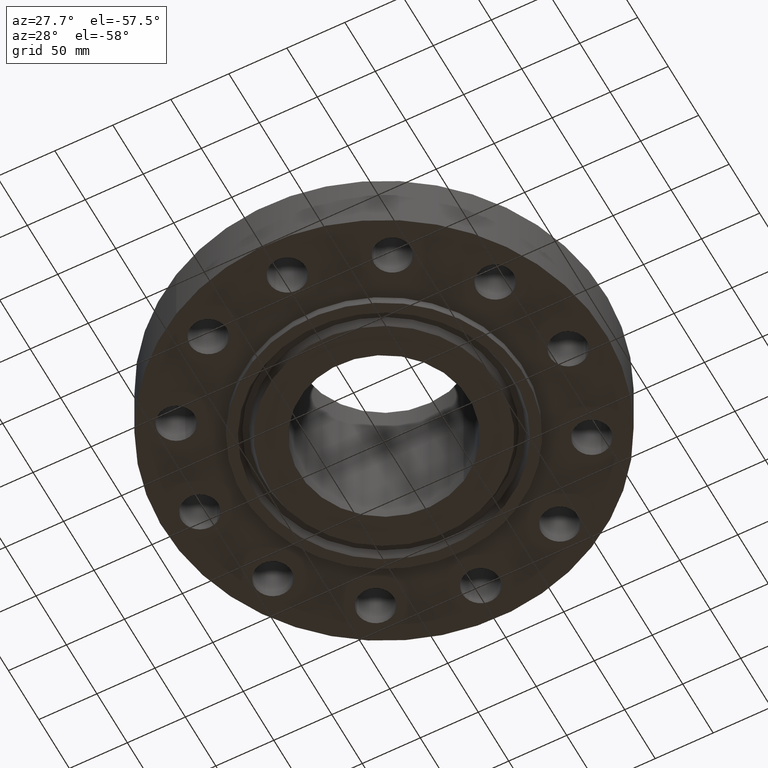
[diagram: clean part render]
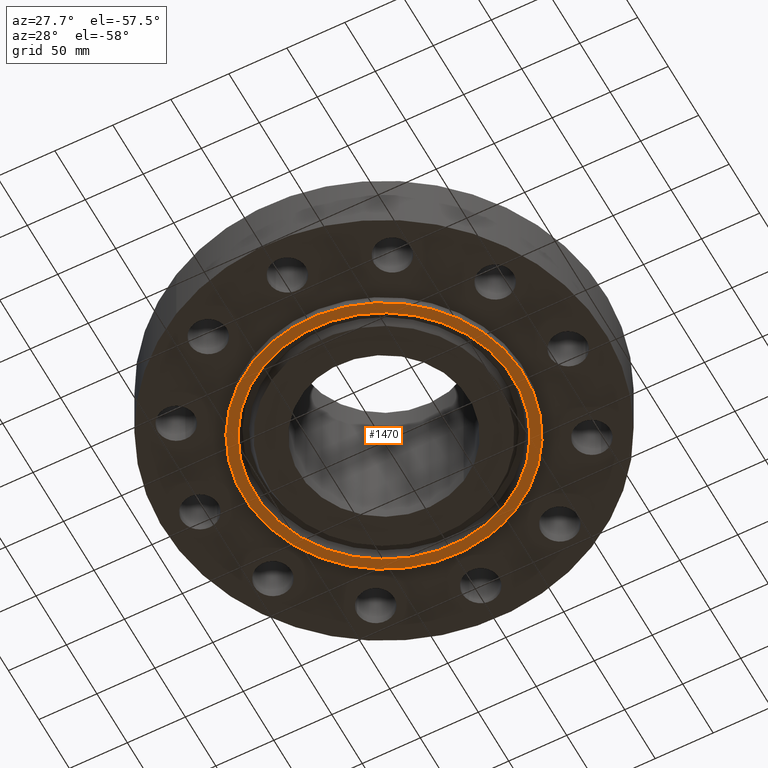
[diagram: same view with one face highlighted and labeled with its STEP entity id]
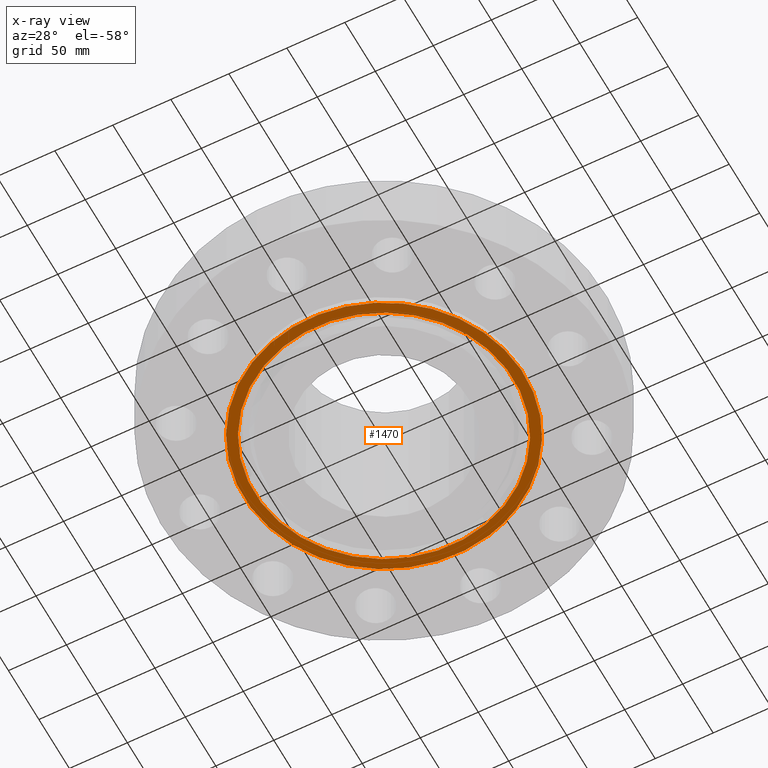
[diagram: x-ray of the same camera — body ghosted, the highlighted face saturated]
A machine part, auxiliary view. The second image highlights one B-rep face of the part: STEP entity #1470.
The next image is the same camera in x-ray: the body ghosted, the highlighted face saturated — about 0% of this face is hidden behind the body in this view.
In plain terms, the highlighted planar face has unit normal (0, 0, -1).
Its self-contained STEP definition (entity closure, byte-faithful):
#711=AXIS2_PLACEMENT_3D('Circle Axis2P3D',#709,#710,$) ;
#1446=AXIS2_PLACEMENT_3D('Plane Axis2P3D',#1443,#1444,#1445) ;
#1454=AXIS2_PLACEMENT_3D('Circle Axis2P3D',#1452,#1453,$) ;
#1463=AXIS2_PLACEMENT_3D('Circle Axis2P3D',#1461,#1462,$) ;
#709=CARTESIAN_POINT('Axis2P3D Location',(0.,0.,-0.312499999975)) ;
#713=CARTESIAN_POINT('Vertex',(2.27727130838,4.168517169,-0.312499999975)) ;
#715=CARTESIAN_POINT('Vertex',(-2.2772713084,-4.16851716898,-0.312500000001)) ;
#748=CARTESIAN_POINT('Control Point',(-2.27727130838,-4.168517169,-0.312500000001)) ;
#749=CARTESIAN_POINT('Control Point',(-2.93206045411,-3.81080422836,-0.3125)) ;
#750=CARTESIAN_POINT('Control Point',(-3.51661282818,-3.32452373962,-0.312499999998)) ;
#751=CARTESIAN_POINT('Control Point',(-3.99715566151,-2.7279608678,-0.312499999997)) ;
#752=CARTESIAN_POINT('Control Point',(-4.69843662508,-1.37855886052,-0.312499999995)) ;
#753=CARTESIAN_POINT('Control Point',(-4.83741405811,0.135827497115,-0.312499999992)) ;
#754=CARTESIAN_POINT('Control Point',(-4.75537550214,0.897456245283,-0.312499999991)) ;
#755=CARTESIAN_POINT('Control Point',(-4.29708471711,2.34750808003,-0.312499999988)) ;
#756=CARTESIAN_POINT('Control Point',(-3.32452373962,3.51661282818,-0.312499999986)) ;
#757=CARTESIAN_POINT('Control Point',(-2.7279608678,3.99715566151,-0.312499999984)) ;
#758=CARTESIAN_POINT('Control Point',(-1.37855886053,4.69843662508,-0.312499999982)) ;
#759=CARTESIAN_POINT('Control Point',(0.135827497113,4.83741405811,-0.312499999979)) ;
#760=CARTESIAN_POINT('Control Point',(0.897456245281,4.75537550214,-0.312499999978)) ;
#761=CARTESIAN_POINT('Control Point',(1.62248216265,4.52623010963,-0.312499999977)) ;
#762=CARTESIAN_POINT('Control Point',(2.27727130838,4.168517169,-0.312499999975)) ;
#1443=CARTESIAN_POINT('Axis2P3D Location',(0.,2.88050000001,-0.312500000001)) ;
#1452=CARTESIAN_POINT('Axis2P3D Location',(0.,2.51364283718E-011,-0.312500000001)) ;
#1456=CARTESIAN_POINT('Vertex',(2.10498974109,-3.85315787536,-0.312500000001)) ;
#1458=CARTESIAN_POINT('Vertex',(-2.10498974109,3.85315787541,-0.312500000001)) ;
#1461=CARTESIAN_POINT('Axis2P3D Location',(0.,2.51364283718E-011,-0.312500000001)) ;
#710=DIRECTION('Axis2P3D Direction',(0.,0.,-0.0393700787402)) ;
#1444=DIRECTION('Axis2P3D Direction',(0.,0.,-0.0393700787402)) ;
#1445=DIRECTION('Axis2P3D XDirection',(0.0393700787402,0.,0.)) ;
#1453=DIRECTION('Axis2P3D Direction',(0.,0.,-0.0393700787402)) ;
#1462=DIRECTION('Axis2P3D Direction',(0.,0.,-0.0393700787402)) ;
#1449=ORIENTED_EDGE('',*,*,#763,.T.) ;
#1450=ORIENTED_EDGE('',*,*,#717,.T.) ;
#1467=ORIENTED_EDGE('',*,*,#1460,.F.) ;
#1468=ORIENTED_EDGE('',*,*,#1465,.F.) ;
#1469=FACE_BOUND('',#1466,.T.) ;
#1470=ADVANCED_FACE('PartBody',(#1451,#1469),#1447,.T.) ;
#747=B_SPLINE_CURVE_WITH_KNOTS('',5,(#748,#749,#750,#751,#752,#753,#754,#755,#756,#757,#758,#759,#760,#761,#762),.UNSPECIFIED.,.F.,.U.,(6,3,3,3,6),(-189.516576829,-94.7582884143,-1.42108547152E-014,94.7582884143,189.516576829),.UNSPECIFIED.) ;
#712=CIRCLE('generated circle',#711,4.75000000002) ;
#1455=CIRCLE('generated circle',#1454,4.39065000002) ;
#1464=CIRCLE('generated circle',#1463,4.39065000002) ;
#717=EDGE_CURVE('',#714,#716,#712,.T.) ;
#763=EDGE_CURVE('',#716,#714,#747,.T.) ;
#1460=EDGE_CURVE('',#1457,#1459,#1455,.T.) ;
#1465=EDGE_CURVE('',#1459,#1457,#1464,.T.) ;
#1448=EDGE_LOOP('',(#1449,#1450)) ;
#1466=EDGE_LOOP('',(#1467,#1468)) ;
#1451=FACE_OUTER_BOUND('',#1448,.T.) ;
#1447=PLANE('',#1446) ;
#714=VERTEX_POINT('',#713) ;
#716=VERTEX_POINT('',#715) ;
#1457=VERTEX_POINT('',#1456) ;
#1459=VERTEX_POINT('',#1458) ;